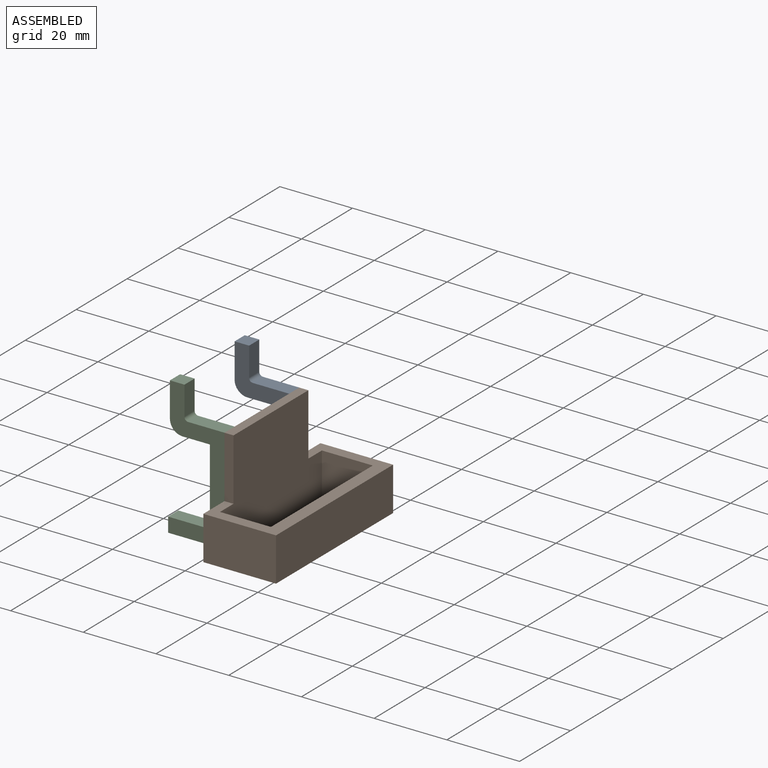
[diagram: assembled view]
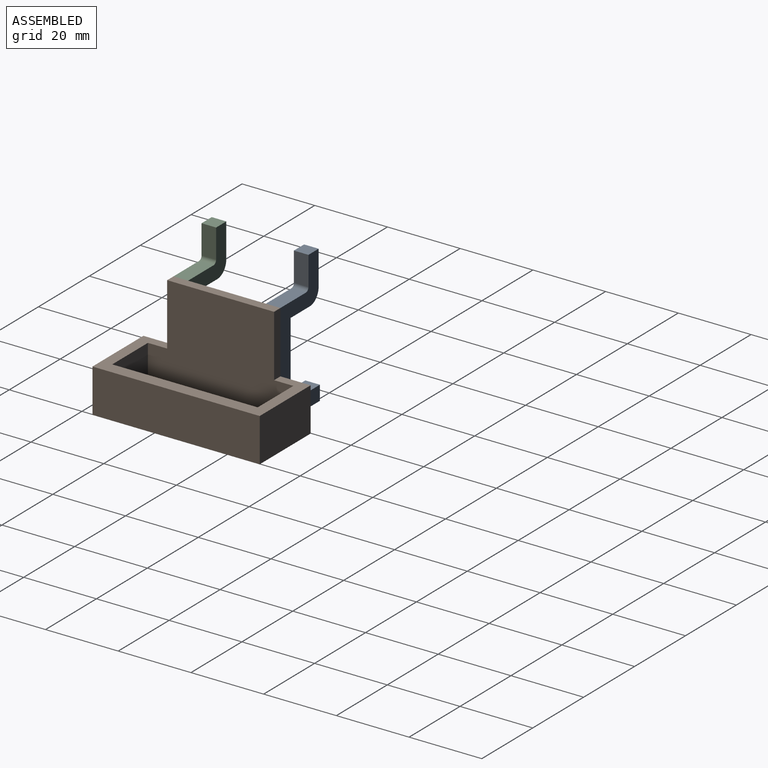
[diagram: assembled view, second angle]
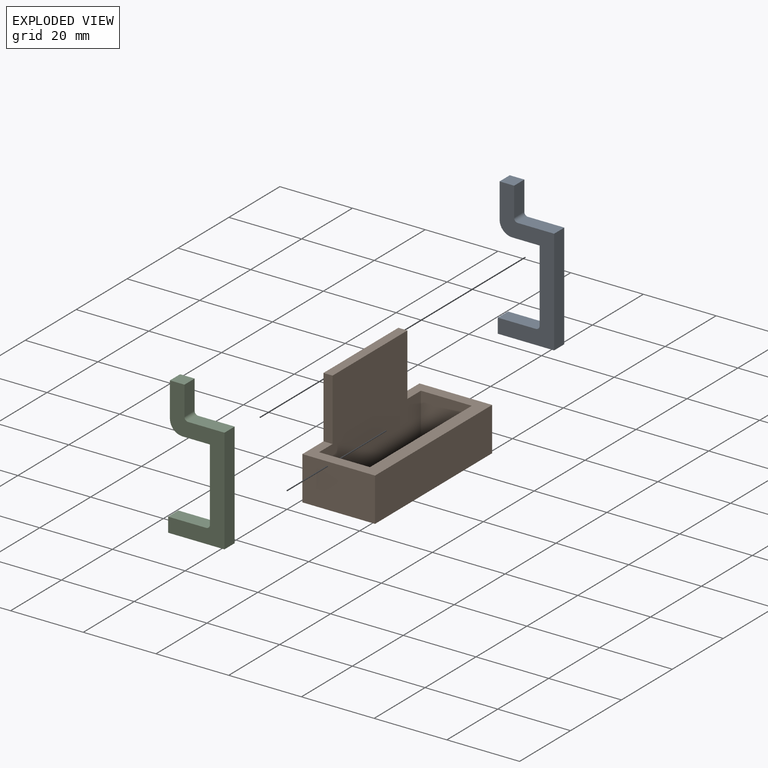
[diagram: exploded view]
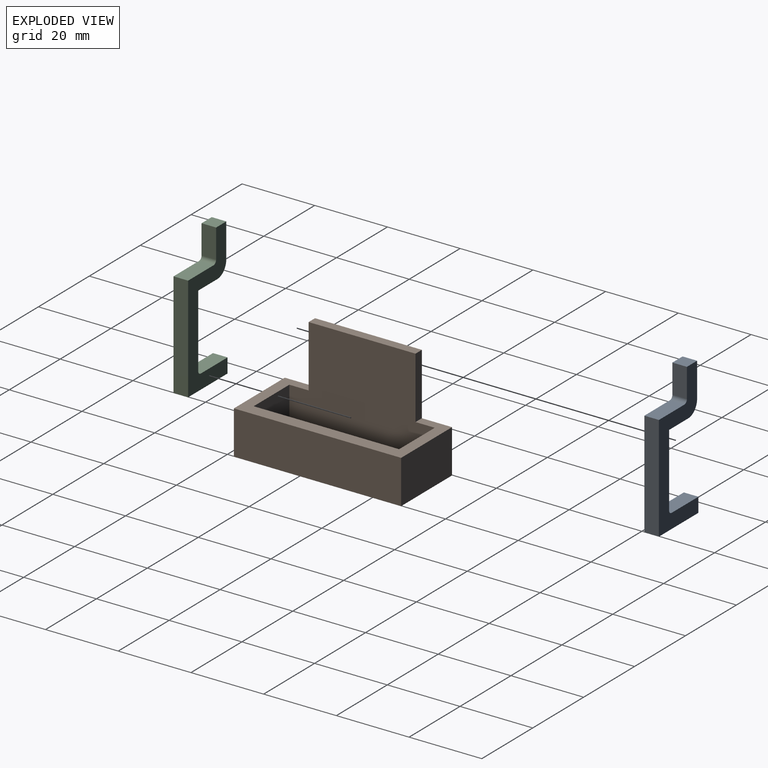
[diagram: exploded view, second angle]
ASSEMBLY  parts=3 mates=2
PART A: 15 faces, bbox 15.5x4x38 mm
  f0: plane 4x4mm, normal (0,0,1), area 16mm2, adj f2,f3,f8,f10
  f1: plane 4x4mm, normal (-1,0,0), area 16mm2, adj f8,f9,f10,f11
  f2: plane 9.5x4mm, normal (-1,0,0), area 38mm2, adj f0,f8,f10,f12
  f3: plane 8x4mm, normal (1,0,0), area 32mm2, adj f0,f8,f10,f13
  f4: plane 10x4mm, normal (0,0,1), area 40mm2, adj f6,f8,f10,f13
  f5: plane 7.5x4mm, normal (0,0,-1), area 30mm2, adj f7,f8,f10,f12
  f6: plane 29x4mm, normal (1,0,0), area 116mm2, adj f4,f8,f9,f10
  f7: plane 20x4mm, normal (-1,0,0), area 80mm2, adj f5,f8,f10,f14
  f8: plane 38x15.5mm, normal (0,1,0), area 239.8mm2, adj f0,f1,f2,f3,f4,f5,f6,f7
  f9: plane 15.5x4mm, normal (0,0,-1), area 62mm2, adj f1,f6,f8,f10
  f10: plane 38x15.5mm, normal (0,-1,0), area 239.8mm2, adj f0,f1,f2,f3,f4,f5,f6,f7
  f11: plane 10.5x4mm, normal (0,0,1), area 42mm2, adj f1,f8,f10,f14
  f12: cylinder r=3.5mm len=4mm, axis (0,1,0), area 22mm2, adj f2,f5,f8,f10
  f13: cylinder r=1mm len=4mm, axis (0,1,0), area 6.3mm2, adj f3,f4,f8,f10
  f14: cylinder r=1mm len=4mm, axis (0,-1,0), area 6.3mm2, adj f7,f8,f10,f11
PART B: 13 faces, bbox 20x46x29 mm
  f0: plane 17x2.5mm, normal (0,-1,0), area 42.5mm2, adj f2,f4,f5,f12
  f1: plane 17x2.5mm, normal (0,1,0), area 42.5mm2, adj f2,f4,f5,f12
  f2: plane 29.4x2.5mm, normal (0,0,1), area 73.5mm2, adj f0,f1,f4,f5
  f3: plane 46x20mm, normal (0,0,-1), area 360mm2, adj f4,f5,f6,f7,f8,f9,f10,f11
  f4: plane 40x29mm, normal (1,0,0), area 979.8mm2, adj f0,f1,f2,f3,f9,f11,f12
  f5: plane 46x29mm, normal (-1,0,0), area 1051.8mm2, adj f0,f1,f2,f3,f6,f8,f12
  f6: plane 20x12mm, normal (0,1,0), area 240mm2, adj f3,f5,f7,f12
  f7: plane 46x12mm, normal (1,0,0), area 552mm2, adj f3,f6,f8,f12
  f8: plane 20x12mm, normal (0,-1,0), area 240mm2, adj f3,f5,f7,f12
  f9: plane 14x12mm, normal (0,1,0), area 168mm2, adj f3,f4,f10,f12
  f10: plane 40x12mm, normal (-1,0,0), area 480mm2, adj f3,f9,f11,f12
  f11: plane 14x12mm, normal (0,-1,0), area 168mm2, adj f3,f4,f10,f12
  f12: plane 46x20mm, normal (0,0,1), area 286.5mm2, adj f0,f1,f4,f5,f6,f7,f8,f9
PART C: same geometry as A
PLACE A at identity
PLACE B at identity
PLACE C t=(0,-25.4,0)mm
MATE fastened C.f10 <-> B.f0  axis (0,-1,0) through (2,-27.4,27)mm
MATE fastened A.f8 <-> B.f1  axis (0,1,0) through (2,2,27)mm
